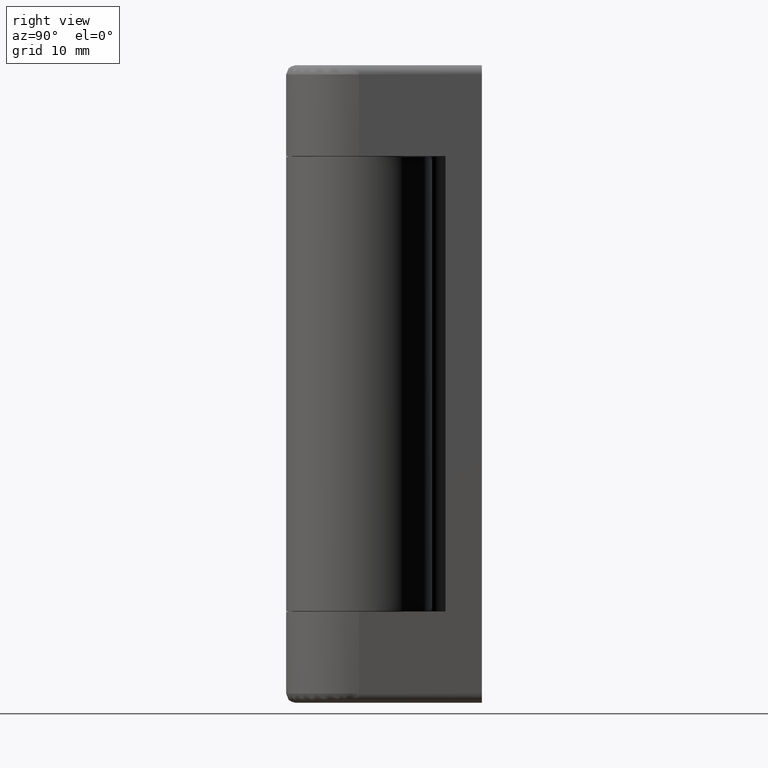
[diagram: clean part render]
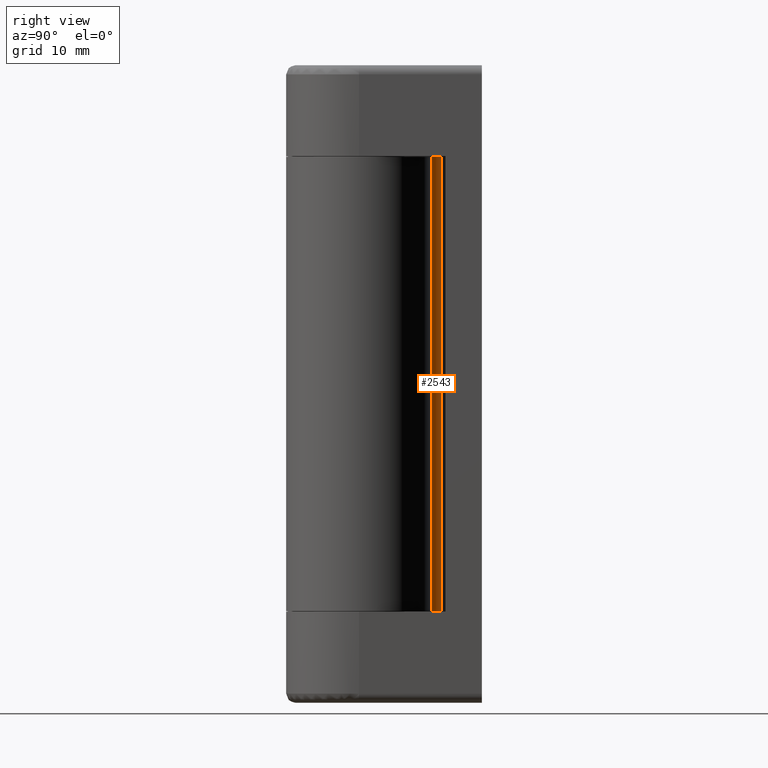
[diagram: same view with one face highlighted and labeled with its STEP entity id]
A machine part, right view. The second image highlights one B-rep face of the part: STEP entity #2543.
In plain terms, the highlighted face is a freeform B-spline surface patch.
Its self-contained STEP definition (entity closure, byte-faithful):
#2364=CARTESIAN_POINT('',(-8.999999999999799,9.0,10.050003000000020));
#2365=VERTEX_POINT('',#2364);
#2371=CARTESIAN_POINT('',(-7.999999999999799,8.0,10.050003000000020));
#2372=VERTEX_POINT('',#2371);
#2373=CARTESIAN_POINT('',(-7.999999999999799,8.0,10.050003000000020));
#2374=CARTESIAN_POINT('',(-8.999999999999799,8.0,10.050003000000022));
#2375=CARTESIAN_POINT('',(-8.999999999999799,9.0,10.050003000000020));
#2383=(BOUNDED_CURVE()B_SPLINE_CURVE(2,(#2373,#2374,#2375),.UNSPECIFIED.,.F.,.U.)CURVE()GEOMETRIC_REPRESENTATION_ITEM()QUASI_UNIFORM_CURVE()RATIONAL_B_SPLINE_CURVE((1.0,0.707106781186548,1.0))REPRESENTATION_ITEM(''));
#2384=EDGE_CURVE('',#2372,#2365,#2383,.T.);
#2424=CARTESIAN_POINT('',(-7.999999999999799,8.0,59.949996999999897));
#2425=VERTEX_POINT('',#2424);
#2431=CARTESIAN_POINT('',(-8.999999999999799,9.0,59.949996999999897));
#2432=VERTEX_POINT('',#2431);
#2433=CARTESIAN_POINT('',(-7.999999999999799,8.0,59.949996999999897));
#2434=CARTESIAN_POINT('',(-8.999999999999799,8.0,59.949996999999890));
#2435=CARTESIAN_POINT('',(-8.999999999999799,9.0,59.949996999999897));
#2443=(BOUNDED_CURVE()B_SPLINE_CURVE(2,(#2433,#2434,#2435),.UNSPECIFIED.,.F.,.U.)CURVE()GEOMETRIC_REPRESENTATION_ITEM()QUASI_UNIFORM_CURVE()RATIONAL_B_SPLINE_CURVE((1.0,0.707106781186548,1.0))REPRESENTATION_ITEM(''));
#2444=EDGE_CURVE('',#2425,#2432,#2443,.T.);
#2505=CARTESIAN_POINT('',(-7.999999999999799,8.0,59.949996999999897));
#2506=CARTESIAN_POINT('',(-7.999999999999799,8.0,10.050003000000020));
#2507=QUASI_UNIFORM_CURVE('',1,(#2505,#2506),.UNSPECIFIED.,.F.,.U.);
#2508=EDGE_CURVE('',#2425,#2372,#2507,.T.);
#2519=CARTESIAN_POINT('',(-8.999961923063971,9.008726535498374,61.197496849999887));
#2520=CARTESIAN_POINT('',(-8.999961923063971,9.008726535498374,8.771315653750015));
#2521=CARTESIAN_POINT('',(-9.009319986679346,7.936398657988251,61.197496849999879));
#2522=CARTESIAN_POINT('',(-9.009319986679346,7.936398657988251,8.771315653750015));
#2523=CARTESIAN_POINT('',(-7.938951460464944,8.001865201578134,61.197496849999887));
#2524=CARTESIAN_POINT('',(-7.938951460464944,8.001865201578134,8.771315653750015));
#2532=(BOUNDED_SURFACE()B_SPLINE_SURFACE(1,2,((#2519,#2521,#2523),(#2520,#2522,#2524)),.UNSPECIFIED.,.F.,.F.,.U.)B_SPLINE_SURFACE_WITH_KNOTS((2,2),(3,3),(0.0,52.426181196249878),(0.0,1.0),.UNSPECIFIED.)GEOMETRIC_REPRESENTATION_ITEM()RATIONAL_B_SPLINE_SURFACE(((1.0,0.681998360062499,1.0),(1.0,0.681998360062499,1.0)))REPRESENTATION_ITEM('')SURFACE());
#2533=ORIENTED_EDGE('',*,*,#2384,.T.);
#2534=CARTESIAN_POINT('',(-8.999999999999799,9.0,59.949996999999897));
#2535=CARTESIAN_POINT('',(-8.999999999999799,9.0,10.050003000000020));
#2536=QUASI_UNIFORM_CURVE('',1,(#2534,#2535),.UNSPECIFIED.,.F.,.U.);
#2537=EDGE_CURVE('',#2432,#2365,#2536,.T.);
#2538=ORIENTED_EDGE('',*,*,#2537,.F.);
#2539=ORIENTED_EDGE('',*,*,#2444,.F.);
#2540=ORIENTED_EDGE('',*,*,#2508,.T.);
#2541=EDGE_LOOP('',(#2533,#2538,#2539,#2540));
#2542=FACE_OUTER_BOUND('',#2541,.T.);
#2543=ADVANCED_FACE('',(#2542),#2532,.F.);